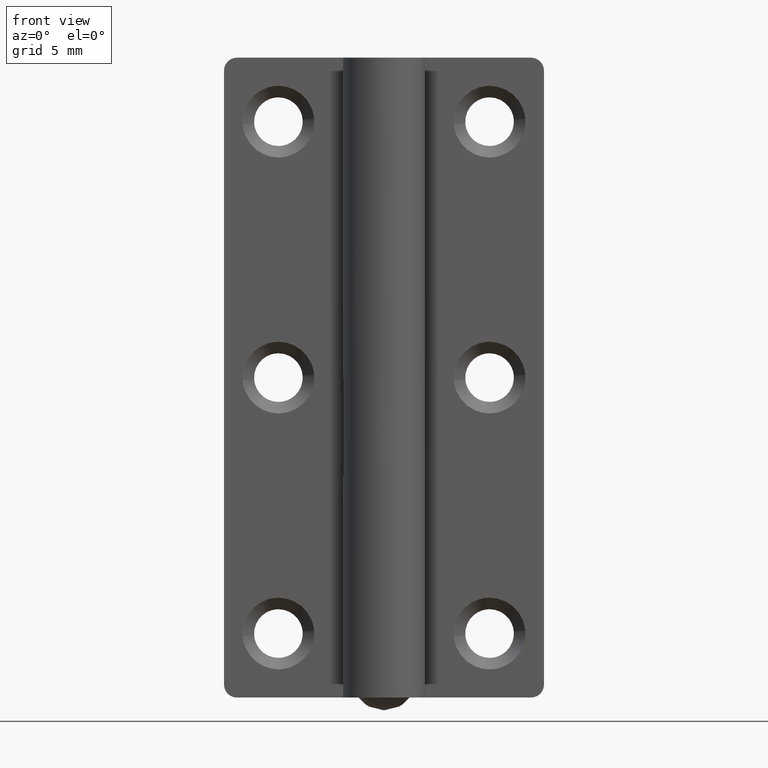
[diagram: clean part render]
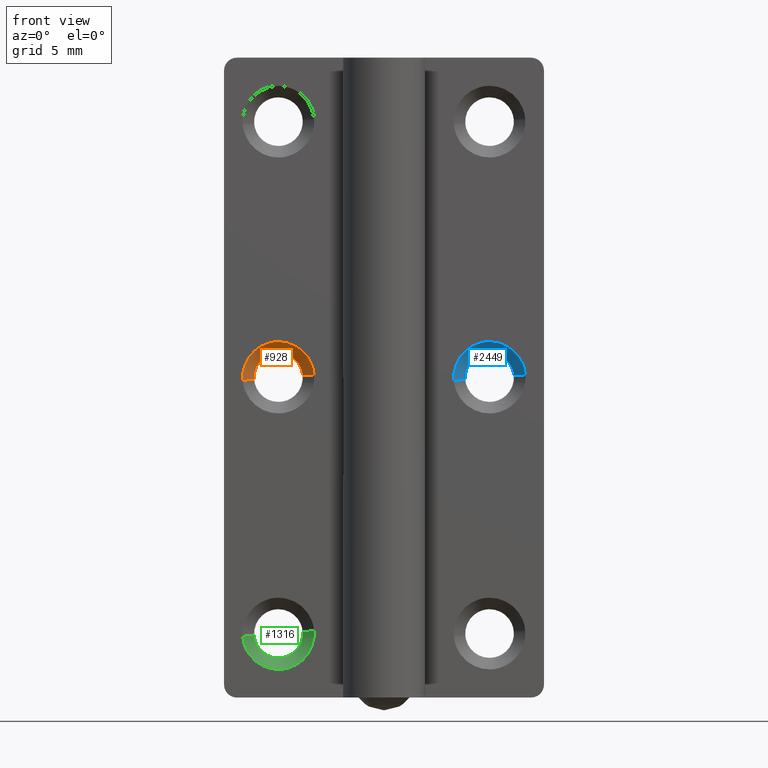
[diagram: same view with three faces highlighted in distinct colors, each labeled with its STEP entity id]
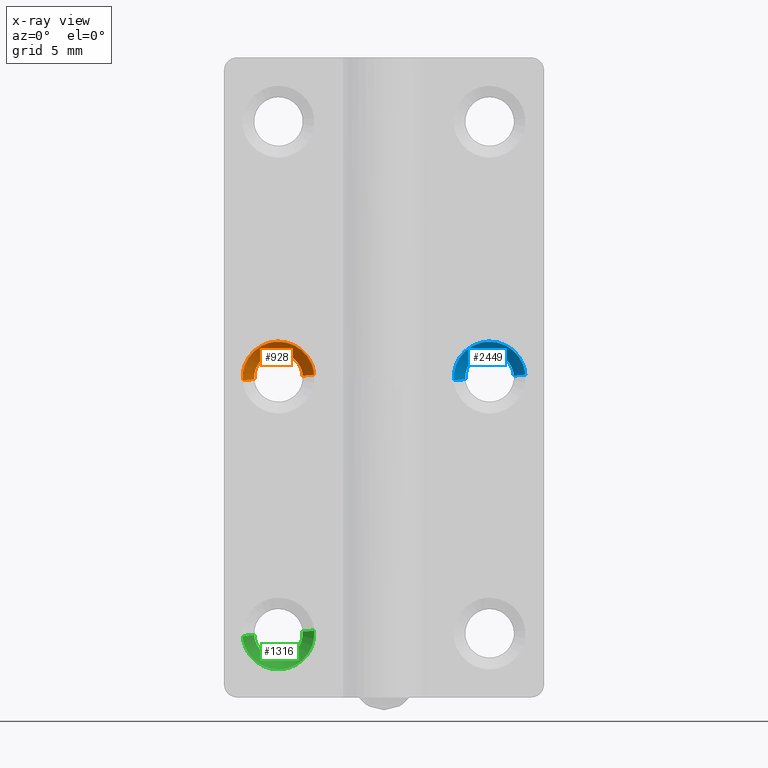
[diagram: x-ray of the same camera — body ghosted, the three highlighted faces saturated]
A machine part, front view with three faces highlighted in distinct colors.
The next image is the same camera in x-ray (body ghosted, the three faces saturated) — at least one of them is partly hidden behind the body in this view.
Their STEP definitions:

[orange] entity #928 — the highlighted face is a freeform B-spline surface patch.
#733=CARTESIAN_POINT('',(-10.146456069078599,2.900000035762553,24.884008016516841));
#734=VERTEX_POINT('',#733);
#778=CARTESIAN_POINT('',(-6.355857149095421,2.900000035760563,25.149072275352669));
#779=VERTEX_POINT('',#778);
#795=CARTESIAN_POINT('',(-8.250000000000000,2.900000035762786,26.899999916553501));
#796=VERTEX_POINT('',#795);
#797=CARTESIAN_POINT('',(-8.250000000000000,2.900000035762786,26.899999916553501));
#798=CARTESIAN_POINT('',(-6.493658143017686,2.900000035762786,26.899999916553497));
#799=CARTESIAN_POINT('',(-6.355857149095421,2.900000035760562,25.149072275352669));
#807=(BOUNDED_CURVE()B_SPLINE_CURVE(2,(#797,#798,#799),.UNSPECIFIED.,.F.,.U.)B_SPLINE_CURVE_WITH_KNOTS((3,3),(0.0,0.236331300629738),.UNSPECIFIED.)CURVE()GEOMETRIC_REPRESENTATION_ITEM()RATIONAL_B_SPLINE_CURVE((1.0,0.723120658608745,0.969723356165495))REPRESENTATION_ITEM(''));
#808=EDGE_CURVE('',#796,#779,#807,.T.);
#810=CARTESIAN_POINT('',(-10.146456069078601,2.900000035762553,24.884008016516837));
#811=CARTESIAN_POINT('',(-10.149999916553504,2.900000035762786,24.941949871521775));
#812=CARTESIAN_POINT('',(-10.149999916553501,2.900000035762786,25.0));
#813=CARTESIAN_POINT('',(-10.149999916553499,2.900000035762785,26.899999916553494));
#814=CARTESIAN_POINT('',(-8.250000000000000,2.900000035762786,26.899999916553501));
#822=(BOUNDED_CURVE()B_SPLINE_CURVE(2,(#810,#811,#812,#813,#814),.UNSPECIFIED.,.F.,.U.)B_SPLINE_CURVE_WITH_KNOTS((3,2,3),(0.739332983879042,0.750000000000000,1.0),.UNSPECIFIED.)CURVE()GEOMETRIC_REPRESENTATION_ITEM()RATIONAL_B_SPLINE_CURVE((0.976072088045573,0.987502813252790,1.0,0.707106781186548,1.0))REPRESENTATION_ITEM(''));
#823=EDGE_CURVE('',#734,#796,#822,.T.);
#862=CARTESIAN_POINT('',(-6.378287791482151,2.922500036656856,25.147306945494829));
#863=CARTESIAN_POINT('',(-6.525594736976985,2.922500036656857,27.019019154012678));
#864=CARTESIAN_POINT('',(-8.397306945494831,2.922500036656856,26.871712208517849));
#865=CARTESIAN_POINT('',(-10.269019154012680,2.922500036656857,26.724405263023023));
#866=CARTESIAN_POINT('',(-10.121712208517851,2.922500036656856,24.852693054505171));
#867=CARTESIAN_POINT('',(-5.435640045217584,1.976937499083578,25.221494932060239));
#868=CARTESIAN_POINT('',(-5.657134977277818,1.976937499083579,28.035854886842653));
#869=CARTESIAN_POINT('',(-8.471494932060233,1.976937499083578,27.814359954782422));
#870=CARTESIAN_POINT('',(-11.285854886842650,1.976937499083579,27.592865022722172));
#871=CARTESIAN_POINT('',(-11.064359954782420,1.976937499083578,24.778505067939768));
#879=(BOUNDED_SURFACE()B_SPLINE_SURFACE(2,1,((#862,#867),(#863,#868),(#864,#869),(#865,#870),(#866,#871)),.UNSPECIFIED.,.F.,.F.,.U.)B_SPLINE_SURFACE_WITH_KNOTS((3,2,3),(2,2),(0.0,4.677403123507835,9.354806247015670),(0.0,1.0),.UNSPECIFIED.)GEOMETRIC_REPRESENTATION_ITEM()RATIONAL_B_SPLINE_SURFACE(((1.0,1.0),(0.707106781186548,0.707106781186548),(1.0,1.0),(0.707106781186548,0.707106781186548),(1.0,1.0)))REPRESENTATION_ITEM('')SURFACE());
#880=ORIENTED_EDGE('',*,*,#808,.T.);
#881=CARTESIAN_POINT('',(-5.458631453652946,1.999999999974804,25.219685469165888));
#882=VERTEX_POINT('',#881);
#883=CARTESIAN_POINT('',(-6.355857149095421,2.900000035760563,25.149072275352669));
#884=CARTESIAN_POINT('',(-5.458631453652946,1.999999999974804,25.219685469165888));
#885=QUASI_UNIFORM_CURVE('',1,(#883,#884),.UNSPECIFIED.,.F.,.U.);
#886=EDGE_CURVE('',#779,#882,#885,.T.);
#887=ORIENTED_EDGE('',*,*,#886,.T.);
#888=CARTESIAN_POINT('',(-8.250000000000000,2.0,27.800000011920929));
#889=VERTEX_POINT('',#888);
#890=CARTESIAN_POINT('',(-8.250000000000000,2.0,27.800000011920929));
#891=CARTESIAN_POINT('',(-5.661706612692060,2.0,27.800000011920929));
#892=CARTESIAN_POINT('',(-5.458631453652946,1.999999999974804,25.219685469165892));
#900=(BOUNDED_CURVE()B_SPLINE_CURVE(2,(#890,#891,#892),.UNSPECIFIED.,.F.,.U.)B_SPLINE_CURVE_WITH_KNOTS((3,3),(0.0,0.236331300609352),.UNSPECIFIED.)CURVE()GEOMETRIC_REPRESENTATION_ITEM()RATIONAL_B_SPLINE_CURVE((1.0,0.723120658632630,0.969723356122950))REPRESENTATION_ITEM(''));
#901=EDGE_CURVE('',#889,#882,#900,.T.);
#902=ORIENTED_EDGE('',*,*,#901,.F.);
#903=CARTESIAN_POINT('',(-11.041368546347060,1.999999999974803,24.780314530834112));
#904=VERTEX_POINT('',#903);
#905=CARTESIAN_POINT('',(-11.041368546347060,1.999999999974803,24.780314530834108));
#906=CARTESIAN_POINT('',(-11.050000011920927,2.000000000000000,24.889987699718624));
#907=CARTESIAN_POINT('',(-11.050000011920931,2.0,25.0));
#908=CARTESIAN_POINT('',(-11.050000011920931,2.000000000000000,27.800000011920940));
#909=CARTESIAN_POINT('',(-8.250000000000000,2.0,27.800000011920929));
#917=(BOUNDED_CURVE()B_SPLINE_CURVE(2,(#905,#906,#907,#908,#909),.UNSPECIFIED.,.F.,.U.)B_SPLINE_CURVE_WITH_KNOTS((3,2,3),(0.736331300609351,0.750000000000000,1.0),.UNSPECIFIED.)CURVE()GEOMETRIC_REPRESENTATION_ITEM()RATIONAL_B_SPLINE_CURVE((0.969723356122949,0.983986122553918,1.0,0.707106781186548,1.0))REPRESENTATION_ITEM(''));
#918=EDGE_CURVE('',#904,#889,#917,.T.);
#919=ORIENTED_EDGE('',*,*,#918,.F.);
#920=CARTESIAN_POINT('',(-10.146456069078599,2.900000035762553,24.884008016516841));
#921=CARTESIAN_POINT('',(-11.041368546347060,1.999999999974803,24.780314530834112));
#922=QUASI_UNIFORM_CURVE('',1,(#920,#921),.UNSPECIFIED.,.F.,.U.);
#923=EDGE_CURVE('',#734,#904,#922,.T.);
#924=ORIENTED_EDGE('',*,*,#923,.F.);
#925=ORIENTED_EDGE('',*,*,#823,.T.);
#926=EDGE_LOOP('',(#880,#887,#902,#919,#924,#925));
#927=FACE_OUTER_BOUND('',#926,.T.);
#928=ADVANCED_FACE('',(#927),#879,.F.);

[blue] entity #2449 — the highlighted face is a freeform B-spline surface patch.
#2254=CARTESIAN_POINT('',(6.353543886307139,2.900000095367199,24.884008013692281));
#2255=VERTEX_POINT('',#2254);
#2299=CARTESIAN_POINT('',(10.144142910325479,2.900000095365209,25.149072280029198));
#2300=VERTEX_POINT('',#2299);
#2316=CARTESIAN_POINT('',(8.250000000000000,2.900000095367430,26.899999976158139));
#2317=VERTEX_POINT('',#2316);
#2318=CARTESIAN_POINT('',(8.250000000000000,2.900000095367430,26.899999976158139));
#2319=CARTESIAN_POINT('',(10.006341912080279,2.900000095367430,26.899999976158142));
#2320=CARTESIAN_POINT('',(10.144142910325479,2.900000095365208,25.149072280029202));
#2328=(BOUNDED_CURVE()B_SPLINE_CURVE(2,(#2318,#2319,#2320),.UNSPECIFIED.,.F.,.U.)B_SPLINE_CURVE_WITH_KNOTS((3,3),(0.0,0.236331300629738),.UNSPECIFIED.)CURVE()GEOMETRIC_REPRESENTATION_ITEM()RATIONAL_B_SPLINE_CURVE((1.0,0.723120658608745,0.969723356165495))REPRESENTATION_ITEM(''));
#2329=EDGE_CURVE('',#2317,#2300,#2328,.T.);
#2331=CARTESIAN_POINT('',(6.353543886307139,2.900000095367199,24.884008013692288));
#2332=CARTESIAN_POINT('',(6.350000023841861,2.900000095367431,24.941949869652820));
#2333=CARTESIAN_POINT('',(6.350000023841861,2.900000095367430,25.0));
#2334=CARTESIAN_POINT('',(6.350000023841862,2.900000095367431,26.899999976158142));
#2335=CARTESIAN_POINT('',(8.250000000000000,2.900000095367430,26.899999976158139));
#2343=(BOUNDED_CURVE()B_SPLINE_CURVE(2,(#2331,#2332,#2333,#2334,#2335),.UNSPECIFIED.,.F.,.U.)B_SPLINE_CURVE_WITH_KNOTS((3,2,3),(0.739332983870354,0.750000000000000,1.0),.UNSPECIFIED.)CURVE()GEOMETRIC_REPRESENTATION_ITEM()RATIONAL_B_SPLINE_CURVE((0.976072088026954,0.987502813242612,1.0,0.707106781186548,1.0))REPRESENTATION_ITEM(''));
#2344=EDGE_CURVE('',#2255,#2317,#2343,.T.);
#2383=CARTESIAN_POINT('',(10.121712270909800,2.922500096261500,25.147306950405181));
#2384=CARTESIAN_POINT('',(9.974405320504612,2.922500096261500,27.019019221314974));
#2385=CARTESIAN_POINT('',(8.102693049594816,2.922500096261500,26.871712270909800));
#2386=CARTESIAN_POINT('',(6.230980778685018,2.922500096261500,26.724405320504609));
#2387=CARTESIAN_POINT('',(6.378287729090204,2.922500096261500,24.852693049594819));
#2388=CARTESIAN_POINT('',(11.064359892316190,1.976937558688223,25.221494927144040));
#2389=CARTESIAN_POINT('',(10.842864965172156,1.976937558688223,28.035854819460230));
#2390=CARTESIAN_POINT('',(8.028505072855964,1.976937558688223,27.814359892316190));
#2391=CARTESIAN_POINT('',(5.214145180539773,1.976937558688223,27.592864965172154));
#2392=CARTESIAN_POINT('',(5.435640107683808,1.976937558688223,24.778505072855960));
#2400=(BOUNDED_SURFACE()B_SPLINE_SURFACE(2,1,((#2383,#2388),(#2384,#2389),(#2385,#2390),(#2386,#2391),(#2387,#2392)),.UNSPECIFIED.,.F.,.F.,.U.)B_SPLINE_SURFACE_WITH_KNOTS((3,2,3),(2,2),(0.0,4.677403019690364,9.354806039380728),(0.0,1.0),.UNSPECIFIED.)GEOMETRIC_REPRESENTATION_ITEM()RATIONAL_B_SPLINE_SURFACE(((1.0,1.0),(0.707106781186548,0.707106781186548),(1.0,1.0),(0.707106781186548,0.707106781186548),(1.0,1.0)))REPRESENTATION_ITEM('')SURFACE());
#2401=ORIENTED_EDGE('',*,*,#2329,.T.);
#2402=CARTESIAN_POINT('',(11.041368486926149,2.000000059579449,25.219685464489359));
#2403=VERTEX_POINT('',#2402);
#2404=CARTESIAN_POINT('',(10.144142910325479,2.900000095365209,25.149072280029198));
#2405=CARTESIAN_POINT('',(11.041368486926149,2.000000059579449,25.219685464489359));
#2406=QUASI_UNIFORM_CURVE('',1,(#2404,#2405),.UNSPECIFIED.,.F.,.U.);
#2407=EDGE_CURVE('',#2300,#2403,#2406,.T.);
#2408=ORIENTED_EDGE('',*,*,#2407,.T.);
#2409=CARTESIAN_POINT('',(8.250000000000000,2.000000059604645,27.799999952316291));
#2410=VERTEX_POINT('',#2409);
#2411=CARTESIAN_POINT('',(8.250000000000000,2.000000059604645,27.799999952316291));
#2412=CARTESIAN_POINT('',(10.838293332209977,2.000000059604646,27.799999952316291));
#2413=CARTESIAN_POINT('',(11.041368486926149,2.000000059579449,25.219685464489356));
#2421=(BOUNDED_CURVE()B_SPLINE_CURVE(2,(#2411,#2412,#2413),.UNSPECIFIED.,.F.,.U.)B_SPLINE_CURVE_WITH_KNOTS((3,3),(0.0,0.236331300609352),.UNSPECIFIED.)CURVE()GEOMETRIC_REPRESENTATION_ITEM()RATIONAL_B_SPLINE_CURVE((1.0,0.723120658632629,0.969723356122950))REPRESENTATION_ITEM(''));
#2422=EDGE_CURVE('',#2410,#2403,#2421,.T.);
#2423=ORIENTED_EDGE('',*,*,#2422,.F.);
#2424=CARTESIAN_POINT('',(5.458631513073849,2.000000059579449,24.780314535510641));
#2425=VERTEX_POINT('',#2424);
#2426=CARTESIAN_POINT('',(5.458631513073849,2.000000059579449,24.780314535510644));
#2427=CARTESIAN_POINT('',(5.450000047683715,2.000000059604645,24.889987702060498));
#2428=CARTESIAN_POINT('',(5.450000047683715,2.000000059604645,25.0));
#2429=CARTESIAN_POINT('',(5.450000047683717,2.000000059604644,27.799999952316298));
#2430=CARTESIAN_POINT('',(8.250000000000000,2.000000059604645,27.799999952316291));
#2438=(BOUNDED_CURVE()B_SPLINE_CURVE(2,(#2426,#2427,#2428,#2429,#2430),.UNSPECIFIED.,.F.,.U.)B_SPLINE_CURVE_WITH_KNOTS((3,2,3),(0.736331300609352,0.750000000000000,1.0),.UNSPECIFIED.)CURVE()GEOMETRIC_REPRESENTATION_ITEM()RATIONAL_B_SPLINE_CURVE((0.969723356122950,0.983986122553918,1.0,0.707106781186547,1.0))REPRESENTATION_ITEM(''));
#2439=EDGE_CURVE('',#2425,#2410,#2438,.T.);
#2440=ORIENTED_EDGE('',*,*,#2439,.F.);
#2441=CARTESIAN_POINT('',(6.353543886307139,2.900000095367199,24.884008013692281));
#2442=CARTESIAN_POINT('',(5.458631513073849,2.000000059579449,24.780314535510641));
#2443=QUASI_UNIFORM_CURVE('',1,(#2441,#2442),.UNSPECIFIED.,.F.,.U.);
#2444=EDGE_CURVE('',#2255,#2425,#2443,.T.);
#2445=ORIENTED_EDGE('',*,*,#2444,.F.);
#2446=ORIENTED_EDGE('',*,*,#2344,.T.);
#2447=EDGE_LOOP('',(#2401,#2408,#2423,#2440,#2445,#2446));
#2448=FACE_OUTER_BOUND('',#2447,.T.);
#2449=ADVANCED_FACE('',(#2448),#2400,.F.);

[green] entity #1316 — the highlighted face is a freeform B-spline surface patch.
#1007=CARTESIAN_POINT('',(-6.362408697629783,2.900000035762785,4.783207847482961));
#1008=VERTEX_POINT('',#1007);
#1009=CARTESIAN_POINT('',(-8.250000000000000,2.900000035762786,3.100000083446500));
#1010=VERTEX_POINT('',#1009);
#1011=CARTESIAN_POINT('',(-6.362408697629783,2.900000035762785,4.783207847482961));
#1012=CARTESIAN_POINT('',(-6.555727983767488,2.900000035762786,3.100000083446501));
#1013=CARTESIAN_POINT('',(-8.250000000000000,2.900000035762786,3.100000083446500));
#1021=(BOUNDED_CURVE()B_SPLINE_CURVE(2,(#1011,#1012,#1013),.UNSPECIFIED.,.F.,.U.)B_SPLINE_CURVE_WITH_KNOTS((3,3),(0.269767916658995,0.500000000000000),.UNSPECIFIED.)CURVE()GEOMETRIC_REPRESENTATION_ITEM()RATIONAL_B_SPLINE_CURVE((0.957343419302233,0.730266336144504,1.0))REPRESENTATION_ITEM(''));
#1022=EDGE_CURVE('',#1008,#1010,#1021,.T.);
#1061=CARTESIAN_POINT('',(-10.146456069078599,2.900000035762553,4.884008016516838));
#1062=VERTEX_POINT('',#1061);
#1068=CARTESIAN_POINT('',(-8.250000000000000,2.900000035762786,3.100000083446500));
#1069=CARTESIAN_POINT('',(-10.037341673170596,2.900000035762786,3.100000083446501));
#1070=CARTESIAN_POINT('',(-10.146456069078601,2.900000035762553,4.884008016516838));
#1078=(BOUNDED_CURVE()B_SPLINE_CURVE(2,(#1068,#1069,#1070),.UNSPECIFIED.,.F.,.U.)B_SPLINE_CURVE_WITH_KNOTS((3,3),(0.500000000000000,0.739332983879041),.UNSPECIFIED.)CURVE()GEOMETRIC_REPRESENTATION_ITEM()RATIONAL_B_SPLINE_CURVE((1.0,0.719603967933758,0.976072088045573))REPRESENTATION_ITEM(''));
#1079=EDGE_CURVE('',#1010,#1062,#1078,.T.);
#1106=CARTESIAN_POINT('',(-6.355857149095419,2.900000035760563,5.149072275352674));
#1107=VERTEX_POINT('',#1106);
#1108=CARTESIAN_POINT('',(-6.355857149095419,2.900000035760563,5.149072275352675));
#1109=CARTESIAN_POINT('',(-6.350000083446500,2.900000035762786,5.074651200052759));
#1110=CARTESIAN_POINT('',(-6.350000083446500,2.900000035762786,5.0));
#1111=CARTESIAN_POINT('',(-6.350000083446500,2.900000035762786,4.891248352725606));
#1112=CARTESIAN_POINT('',(-6.362408697629783,2.900000035762785,4.783207847482962));
#1120=(BOUNDED_CURVE()B_SPLINE_CURVE(2,(#1108,#1109,#1110,#1111,#1112),.UNSPECIFIED.,.F.,.U.)B_SPLINE_CURVE_WITH_KNOTS((3,2,3),(0.236331300629739,0.250000000000000,0.269767916658995),.UNSPECIFIED.)CURVE()GEOMETRIC_REPRESENTATION_ITEM()RATIONAL_B_SPLINE_CURVE((0.969723356165495,0.983986122577803,1.0,0.976840445042043,0.957343419302233))REPRESENTATION_ITEM(''));
#1121=EDGE_CURVE('',#1107,#1008,#1120,.T.);
#1209=CARTESIAN_POINT('',(-5.458631453652946,1.999999999974804,5.219685469165888));
#1210=VERTEX_POINT('',#1209);
#1211=CARTESIAN_POINT('',(-6.355857149095419,2.900000035760563,5.149072275352674));
#1212=CARTESIAN_POINT('',(-5.458631453652946,1.999999999974804,5.219685469165888));
#1213=QUASI_UNIFORM_CURVE('',1,(#1211,#1212),.UNSPECIFIED.,.F.,.U.);
#1214=EDGE_CURVE('',#1107,#1210,#1213,.T.);
#1231=CARTESIAN_POINT('',(-11.041368546347060,1.999999999974804,4.780314530834112));
#1232=VERTEX_POINT('',#1231);
#1248=CARTESIAN_POINT('',(-10.146456069078599,2.900000035762553,4.884008016516838));
#1249=CARTESIAN_POINT('',(-11.041368546347060,1.999999999974804,4.780314530834112));
#1250=QUASI_UNIFORM_CURVE('',1,(#1248,#1249),.UNSPECIFIED.,.F.,.U.);
#1251=EDGE_CURVE('',#1062,#1232,#1250,.T.);
#1257=CARTESIAN_POINT('',(-10.126318917073945,2.922500036656857,4.911226836578815));
#1258=CARTESIAN_POINT('',(-10.124030578460868,2.922500036656855,4.882150737655409));
#1259=CARTESIAN_POINT('',(-9.974405263023019,2.922500036656857,2.980980845987320));
#1260=CARTESIAN_POINT('',(-8.102693054505169,2.922500036656856,3.128287791482151));
#1261=CARTESIAN_POINT('',(-6.230980845987321,2.922500036656857,3.275594736976984));
#1262=CARTESIAN_POINT('',(-6.379332757032591,2.922500036656856,5.160584491720936));
#1263=CARTESIAN_POINT('',(-6.380371599631859,2.922500036656857,5.173784238475907));
#1264=CARTESIAN_POINT('',(-11.071286733388996,1.976937499083579,4.866518135077090));
#1265=CARTESIAN_POINT('',(-11.067845922068583,1.976937499083578,4.822798481981426));
#1266=CARTESIAN_POINT('',(-10.842865022722183,1.976937499083579,1.964145113157350));
#1267=CARTESIAN_POINT('',(-8.028505067939767,1.976937499083578,2.185640045217584));
#1268=CARTESIAN_POINT('',(-5.214145113157349,1.976937499083579,2.407134977277818));
#1269=CARTESIAN_POINT('',(-5.437211285275696,1.976937499083579,5.241459429928264));
#1270=CARTESIAN_POINT('',(-5.438773318689486,1.976937499083579,5.261306946288631));
#1278=(BOUNDED_SURFACE()B_SPLINE_SURFACE(2,1,((#1257,#1264),(#1258,#1265),(#1259,#1266),(#1260,#1267),(#1261,#1268),(#1262,#1269),(#1263,#1270)),.UNSPECIFIED.,.F.,.F.,.U.)B_SPLINE_SURFACE_WITH_KNOTS((3,1,2,1,3),(2,2),(0.0,0.104789981937227,4.782193105445055,9.459596228952883,9.506658895938918),(0.0,1.0),.UNSPECIFIED.)GEOMETRIC_REPRESENTATION_ITEM()RATIONAL_B_SPLINE_SURFACE(((1.013123639035833,1.013123639035833),(1.006561819517917,1.006561819517917),(0.707106781186548,0.707106781186548),(1.0,1.0),(0.707106781186548,0.707106781186548),(1.002947006203123,1.002947006203123),(1.005894012406246,1.005894012406246)))REPRESENTATION_ITEM('')SURFACE());
#1279=ORIENTED_EDGE('',*,*,#1121,.T.);
#1280=ORIENTED_EDGE('',*,*,#1022,.T.);
#1281=ORIENTED_EDGE('',*,*,#1079,.T.);
#1282=ORIENTED_EDGE('',*,*,#1251,.T.);
#1283=CARTESIAN_POINT('',(-8.250000000000000,2.0,2.199999988079070));
#1284=VERTEX_POINT('',#1283);
#1285=CARTESIAN_POINT('',(-8.250000000000000,2.0,2.199999988079070));
#1286=CARTESIAN_POINT('',(-10.838293387307939,2.000000000000000,2.199999988079071));
#1287=CARTESIAN_POINT('',(-11.041368546347060,1.999999999974804,4.780314530834112));
#1295=(BOUNDED_CURVE()B_SPLINE_CURVE(2,(#1285,#1286,#1287),.UNSPECIFIED.,.F.,.U.)B_SPLINE_CURVE_WITH_KNOTS((3,3),(0.500000000000000,0.736331300609351),.UNSPECIFIED.)CURVE()GEOMETRIC_REPRESENTATION_ITEM()RATIONAL_B_SPLINE_CURVE((1.0,0.723120658632630,0.969723356122949))REPRESENTATION_ITEM(''));
#1296=EDGE_CURVE('',#1284,#1232,#1295,.T.);
#1297=ORIENTED_EDGE('',*,*,#1296,.F.);
#1298=CARTESIAN_POINT('',(-5.458631453652946,1.999999999974804,5.219685469165888));
#1299=CARTESIAN_POINT('',(-5.449999988079070,2.000000000000000,5.110012300281375));
#1300=CARTESIAN_POINT('',(-5.449999988079070,2.0,5.0));
#1301=CARTESIAN_POINT('',(-5.449999988079070,2.000000000000000,2.199999988079070));
#1302=CARTESIAN_POINT('',(-8.250000000000000,2.0,2.199999988079070));
#1310=(BOUNDED_CURVE()B_SPLINE_CURVE(2,(#1298,#1299,#1300,#1301,#1302),.UNSPECIFIED.,.F.,.U.)B_SPLINE_CURVE_WITH_KNOTS((3,2,3),(0.236331300609352,0.250000000000000,0.500000000000000),.UNSPECIFIED.)CURVE()GEOMETRIC_REPRESENTATION_ITEM()RATIONAL_B_SPLINE_CURVE((0.969723356122950,0.983986122553918,1.0,0.707106781186548,1.0))REPRESENTATION_ITEM(''));
#1311=EDGE_CURVE('',#1210,#1284,#1310,.T.);
#1312=ORIENTED_EDGE('',*,*,#1311,.F.);
#1313=ORIENTED_EDGE('',*,*,#1214,.F.);
#1314=EDGE_LOOP('',(#1279,#1280,#1281,#1282,#1297,#1312,#1313));
#1315=FACE_OUTER_BOUND('',#1314,.T.);
#1316=ADVANCED_FACE('',(#1315),#1278,.F.);